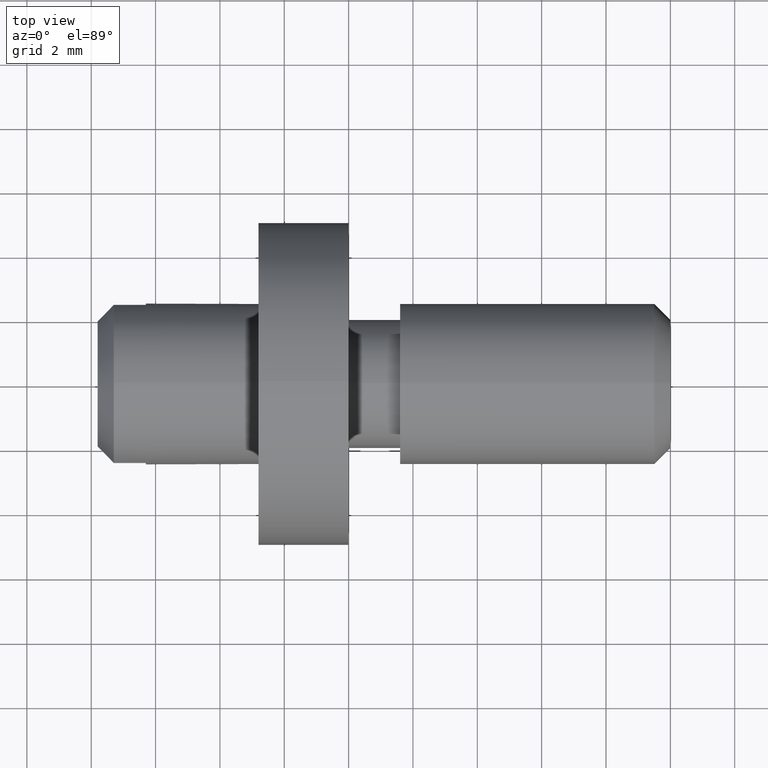
[diagram: clean part render]
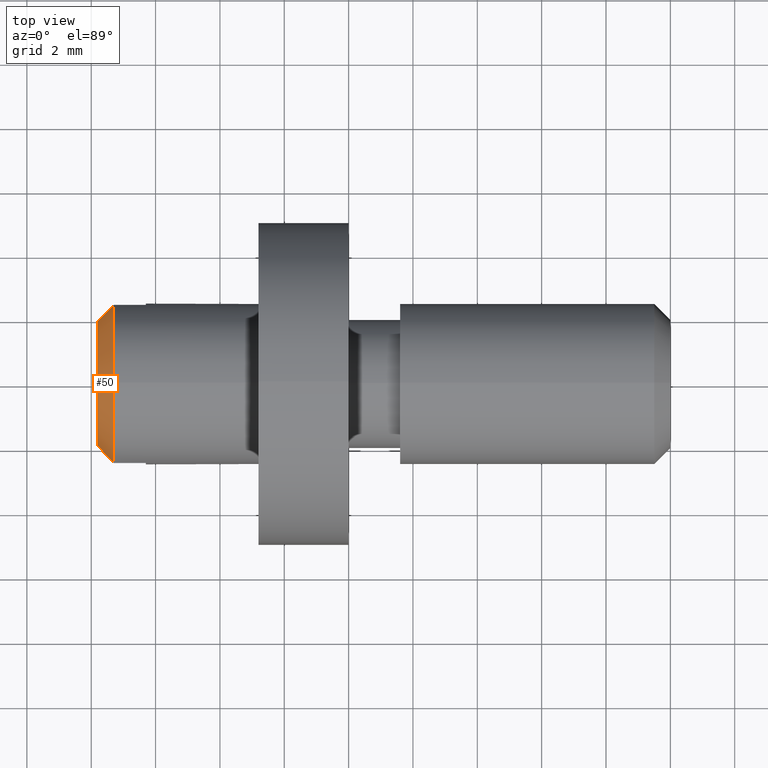
[diagram: same view with one face highlighted and labeled with its STEP entity id]
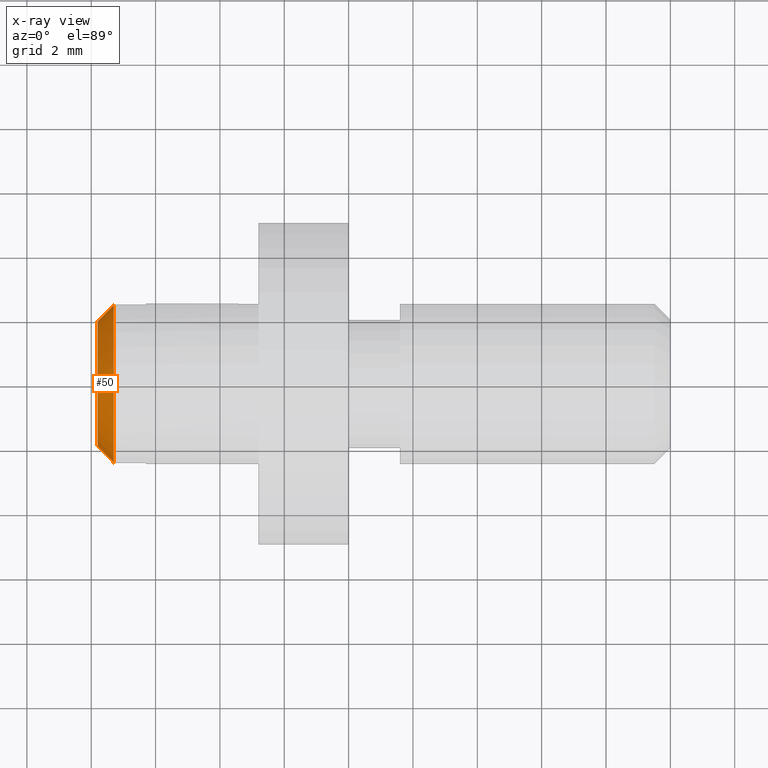
[diagram: x-ray of the same camera — body ghosted, the highlighted face saturated]
A machine part, top view. The second image highlights one B-rep face of the part: STEP entity #50.
The next image is the same camera in x-ray: the body ghosted, the highlighted face saturated — about 0% of this face is hidden behind the body in this view.
In plain terms, the highlighted face is a freeform B-spline surface patch.
Its self-contained STEP definition (entity closure, byte-faithful):
#50=ADVANCED_FACE('',(#165),#164,.T.);
#164=( BOUNDED_SURFACE() B_SPLINE_SURFACE( 2,1,((#333,#334),(#335,#336),(#337,#338),(#339,#340),(#341,#342)), .UNSPECIFIED.,.F.,.F.,.F.) B_SPLINE_SURFACE_WITH_KNOTS((3,2,3),(2,2),(0.00000000000E+00,5.00000000000E-01,1.00000000000E+00),(0.00000000000E+00,1.00000000000E+00), .UNSPECIFIED. ) GEOMETRIC_REPRESENTATION_ITEM() RATIONAL_B_SPLINE_SURFACE(((1.00000000000E+00,1.00000000000E+00),(7.07108946716E-01,7.07108946716E-01),(1.00000000000E+00,1.00000000000E+00),(7.07108946716E-01,7.07108946716E-01),(1.00000000000E+00,1.00000000000E+00))) REPRESENTATION_ITEM('') SURFACE() );
#165=FACE_OUTER_BOUND('',#343,.T.);
#333=CARTESIAN_POINT('',(-1.98000000000E+01,1.07665434047E-12,-9.27503995350E-13));
#334=CARTESIAN_POINT('',(-1.62644085033E+01,3.46418107770E+00,7.07005440379E-01));
#335=CARTESIAN_POINT('',(-1.98000000000E+01,1.07665434047E-12,-9.27503995350E-13));
#336=CARTESIAN_POINT('',(-1.62644085033E+01,2.75717996775E+00,4.17116529985E+00));
#337=CARTESIAN_POINT('',(-1.98000000000E+01,1.07665434047E-12,-9.27503995350E-13));
#338=CARTESIAN_POINT('',(-1.62644085033E+01,-7.06984222076E-01,3.46418540808E+00));
#339=CARTESIAN_POINT('',(-1.98000000000E+01,1.07665434047E-12,-9.27503995350E-13));
#340=CARTESIAN_POINT('',(-1.62644085033E+01,-4.17114841191E+00,2.75720551630E+00));
#341=CARTESIAN_POINT('',(-1.98000000000E+01,1.07665434047E-12,-9.27503995350E-13));
#342=CARTESIAN_POINT('',(-1.62644085033E+01,-3.46418973833E+00,-7.06963003749E-01));
#343=EDGE_LOOP('',(#445,#446,#447,#448,#449));
#445=ORIENTED_EDGE('',*,*,#504,.F.);
#446=ORIENTED_EDGE('',*,*,#530,.T.);
#447=ORIENTED_EDGE('',*,*,#531,.T.);
#448=ORIENTED_EDGE('',*,*,#506,.F.);
#449=ORIENTED_EDGE('',*,*,#513,.F.);
#504=EDGE_CURVE('',#586,#587,#588,.T.);
#506=EDGE_CURVE('',#594,#601,#602,.T.);
#513=EDGE_CURVE('',#587,#594,#647,.T.);
#530=EDGE_CURVE('',#586,#763,#764,.T.);
#531=EDGE_CURVE('',#763,#601,#770,.T.);
#586=VERTEX_POINT('',#876);
#587=VERTEX_POINT('',#877);
#588=(BOUNDED_CURVE() B_SPLINE_CURVE(3,(#878,#879,#880,#881),.UNSPECIFIED.,.F.,.F.) B_SPLINE_CURVE_WITH_KNOTS((4,4),(4.15931936448E-03,4.87567610379E-03),.UNSPECIFIED.) CURVE() GEOMETRIC_REPRESENTATION_ITEM() RATIONAL_B_SPLINE_CURVE((1.00000000000E+00,1.00000000000E+00,1.00000000000E+00,1.00000000000E+00)) REPRESENTATION_ITEM('') );
#594=VERTEX_POINT('',#882);
#601=VERTEX_POINT('',#886);
#602=(BOUNDED_CURVE() B_SPLINE_CURVE(3,(#887,#888,#889,#890),.UNSPECIFIED.,.F.,.F.) B_SPLINE_CURVE_WITH_KNOTS((4,4),(9.83560853679E-03,1.05511258395E-02),.UNSPECIFIED.) CURVE() GEOMETRIC_REPRESENTATION_ITEM() RATIONAL_B_SPLINE_CURVE((1.00000000000E+00,1.00000000000E+00,1.00000000000E+00,1.00000000000E+00)) REPRESENTATION_ITEM('') );
#647=CIRCLE('',#918,2.00000000001E+00);
#763=VERTEX_POINT('',#997);
#764=CIRCLE('',#1001,2.50000000001E+00);
#770=CIRCLE('',#1005,2.50000000001E+00);
#876=CARTESIAN_POINT('',(-1.73000000000E+01,-2.44948974278E+00,5.00000000000E-01));
#877=CARTESIAN_POINT('',(-1.78000000000E+01,-1.93649167311E+00,5.00000000000E-01));
#878=CARTESIAN_POINT('',(-1.73000000000E+01,-2.44948974279E+00,5.00000000000E-01));
#879=CARTESIAN_POINT('',(-1.74671155519E+01,-2.27892814689E+00,5.00000000000E-01));
#880=CARTESIAN_POINT('',(-1.76338976905E+01,-2.10804140066E+00,5.00000000000E-01));
#881=CARTESIAN_POINT('',(-1.78000000000E+01,-1.93649167311E+00,5.00000000000E-01));
#882=CARTESIAN_POINT('',(-1.78000000000E+01,1.93649167311E+00,5.00000000000E-01));
#886=CARTESIAN_POINT('',(-1.73000000000E+01,2.44948974278E+00,5.00000000000E-01));
#887=CARTESIAN_POINT('',(-1.78000000000E+01,1.93649167311E+00,5.00000000000E-01));
#888=CARTESIAN_POINT('',(-1.76339011684E+01,2.10803780871E+00,5.00000000000E-01));
#889=CARTESIAN_POINT('',(-1.74671183351E+01,2.27892530624E+00,5.00000000000E-01));
#890=CARTESIAN_POINT('',(-1.73000000000E+01,2.44948974279E+00,5.00000000000E-01));
#915=CARTESIAN_POINT('',(-1.78000000000E+01,0.00000000000E+00,0.00000000000E+00));
#916=DIRECTION('',(-1.00000000000E+00,0.00000000000E+00,0.00000000000E+00));
#917=DIRECTION('',(-0.00000000000E+00,9.68245836552E-01,-2.49999999999E-01));
#918=AXIS2_PLACEMENT_3D('',#915,#916,#917);
#997=CARTESIAN_POINT('',(-1.73000000000E+01,5.56557831332E-11,2.50000000001E+00));
#998=CARTESIAN_POINT('',(-1.73000000000E+01,0.00000000000E+00,0.00000000000E+00));
#999=DIRECTION('',(-1.00000000000E+00,0.00000000000E+00,0.00000000000E+00));
#1000=DIRECTION('',(-0.00000000000E+00,9.79795897113E-01,-2.00000000000E-01));
#1001=AXIS2_PLACEMENT_3D('',#998,#999,#1000);
#1002=CARTESIAN_POINT('',(-1.73000000000E+01,0.00000000000E+00,0.00000000000E+00));
#1003=DIRECTION('',(-1.00000000000E+00,0.00000000000E+00,0.00000000000E+00));
#1004=DIRECTION('',(-0.00000000000E+00,9.79795897113E-01,-2.00000000000E-01));
#1005=AXIS2_PLACEMENT_3D('',#1002,#1003,#1004);